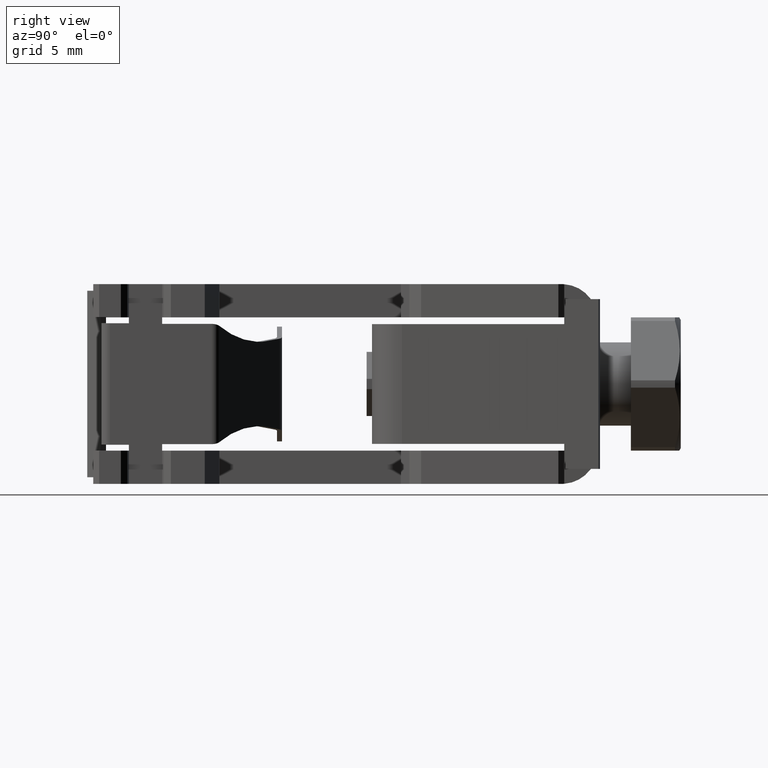
[diagram: clean part render]
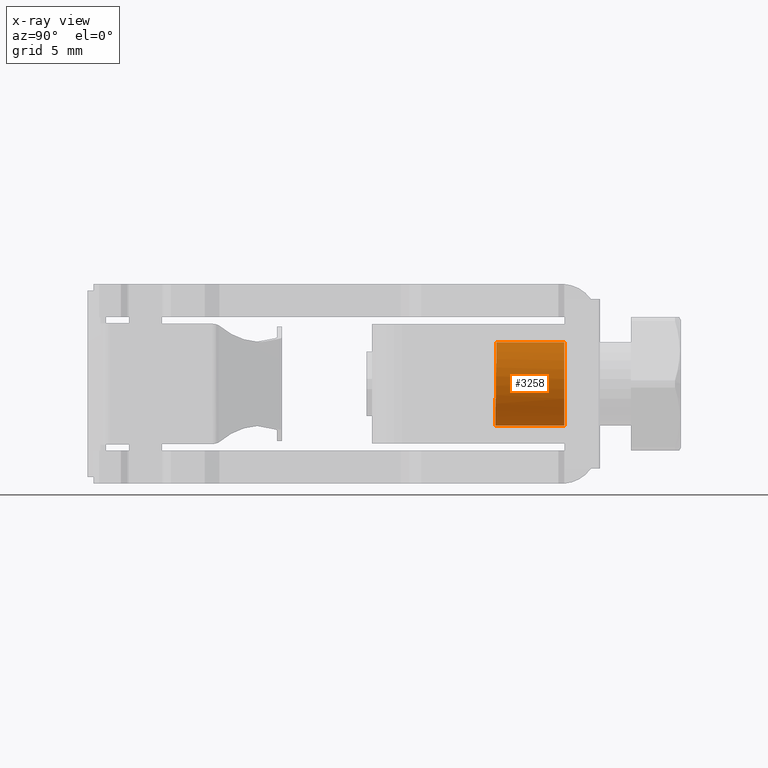
[diagram: x-ray — body ghosted, one internal face saturated and labeled with its STEP entity id]
A machine part, right view, then the same camera in x-ray: the body is ghosted and one INTERNAL B-rep face — a face not visible from any outside direction — is saturated and labeled: STEP entity #3258.
In plain terms, the highlighted cylindrical surface (partial cylindrical patch) has radius 2.5 mm, axis along (0, 1, 0).
Its self-contained STEP definition (entity closure, byte-faithful):
#1854 = VERTEX_POINT ( 'NONE', #4378 ) ;
#1863 = VERTEX_POINT ( 'NONE', #4409 ) ;
#1864 = VERTEX_POINT ( 'NONE', #4347 ) ;
#1872 = VERTEX_POINT ( 'NONE', #4464 ) ;
#3258 = ADVANCED_FACE ( 'NONE', ( #3618 ), #3639, .T. ) ;
#3618 = FACE_OUTER_BOUND ( 'NONE', #5512, .T. ) ;
#3619 = CARTESIAN_POINT ( 'NONE',  ( 8.821278230129213000, 34.02833341090882900, 6.000000000000000000 ) ) ;
#3623 = DIRECTION ( 'NONE',  ( 0.0000000000000000000, 1.000000000000000000, 0.0000000000000000000 ) ) ;
#3639 = CYLINDRICAL_SURFACE ( 'NONE', #7872, 2.499999999999114000 ) ;
#3661 = DIRECTION ( 'NONE',  ( 0.0000000000000000000, 0.0000000000000000000, 1.000000000000000000 ) ) ;
#4205 = CARTESIAN_POINT ( 'NONE',  ( 8.821278230129213000, 22.78650998238613900, 3.500000000000886000 ) ) ;
#4206 = CARTESIAN_POINT ( 'NONE',  ( 8.821278230129213000, 34.02833341090882900, 8.499999999999113600 ) ) ;
#4209 = CARTESIAN_POINT ( 'NONE',  ( 13.82127823012733500, 22.85881189460940600, 8.499999999998907500 ) ) ;
#4217 = CARTESIAN_POINT ( 'NONE',  ( 13.82127823012723200, 22.78650998238614300, 3.500000000000887300 ) ) ;
#4218 = LINE ( 'NONE', #4206, #8026 ) ;
#4228 = DIRECTION ( 'NONE',  ( 0.0000000000000000000, 1.000000000000000000, 0.0000000000000000000 ) ) ;
#4231 = CARTESIAN_POINT ( 'NONE',  ( 8.821278230129213000, 22.85881189460941000, 8.499999999999113600 ) ) ;
#4347 = CARTESIAN_POINT ( 'NONE',  ( 8.821278230129213000, 22.78650998238613900, 3.500000000000886000 ) ) ;
#4378 = CARTESIAN_POINT ( 'NONE',  ( 8.821278230129213000, 26.92833341090971200, 3.500000000000886000 ) ) ;
#4409 = CARTESIAN_POINT ( 'NONE',  ( 8.821278230129213000, 22.85881189460941000, 8.499999999999113600 ) ) ;
#4464 = CARTESIAN_POINT ( 'NONE',  ( 8.821278230129213000, 26.92833341090971200, 8.499999999999113600 ) ) ;
#5512 = EDGE_LOOP ( 'NONE', ( #5843, #5839, #5861, #5859 ) ) ;
#5839 = ORIENTED_EDGE ( 'NONE', *, *, #7570, .T. ) ;
#5843 = ORIENTED_EDGE ( 'NONE', *, *, #6770, .T. ) ;
#5859 = ORIENTED_EDGE ( 'NONE', *, *, #6772, .F. ) ;
#5861 = ORIENTED_EDGE ( 'NONE', *, *, #7586, .F. ) ;
#6770 = EDGE_CURVE ( 'NONE', #1863, #1864, #9597, .T. ) ;
#6772 = EDGE_CURVE ( 'NONE', #1863, #1872, #4218, .T. ) ;
#7570 = EDGE_CURVE ( 'NONE', #1864, #1854, #9390, .T. ) ;
#7586 = EDGE_CURVE ( 'NONE', #1872, #1854, #7809, .T. ) ;
#7804 = VECTOR ( 'NONE', #9385, 1000.000000000000000 ) ;
#7805 = AXIS2_PLACEMENT_3D ( 'NONE', #9406, #9425, #9419 ) ;
#7809 = CIRCLE ( 'NONE', #7805, 2.499999999999114000 ) ;
#7872 = AXIS2_PLACEMENT_3D ( 'NONE', #3619, #3623, #3661 ) ;
#8026 = VECTOR ( 'NONE', #4228, 1000.000000000000000 ) ;
#9357 = CARTESIAN_POINT ( 'NONE',  ( 8.821278230129213000, 34.02833341090882900, 3.500000000000886000 ) ) ;
#9385 = DIRECTION ( 'NONE',  ( 0.0000000000000000000, 1.000000000000000000, 0.0000000000000000000 ) ) ;
#9390 = LINE ( 'NONE', #9357, #7804 ) ;
#9406 = CARTESIAN_POINT ( 'NONE',  ( 8.821278230129213000, 26.92833341090971200, 6.000000000000000000 ) ) ;
#9419 = DIRECTION ( 'NONE',  ( 0.0000000000000000000, 0.0000000000000000000, 1.000000000000000000 ) ) ;
#9425 = DIRECTION ( 'NONE',  ( 0.0000000000000000000, 1.000000000000000000, 0.0000000000000000000 ) ) ;
#9597 =( BOUNDED_CURVE ( )  B_SPLINE_CURVE ( 3, ( #4231, #4209, #4217, #4205 ),
 .UNSPECIFIED., .F., .F. ) 
 B_SPLINE_CURVE_WITH_KNOTS ( ( 4, 4 ),
 ( 0.0000000000000000000, 3.141592653589751800 ),
 .UNSPECIFIED. ) 
 CURVE ( )  GEOMETRIC_REPRESENTATION_ITEM ( )  RATIONAL_B_SPLINE_CURVE ( ( 1.000000000000000000, 0.3333333333333471400, 0.3333333333333471400, 1.000000000000000000 ) ) 
 REPRESENTATION_ITEM ( '' )  );